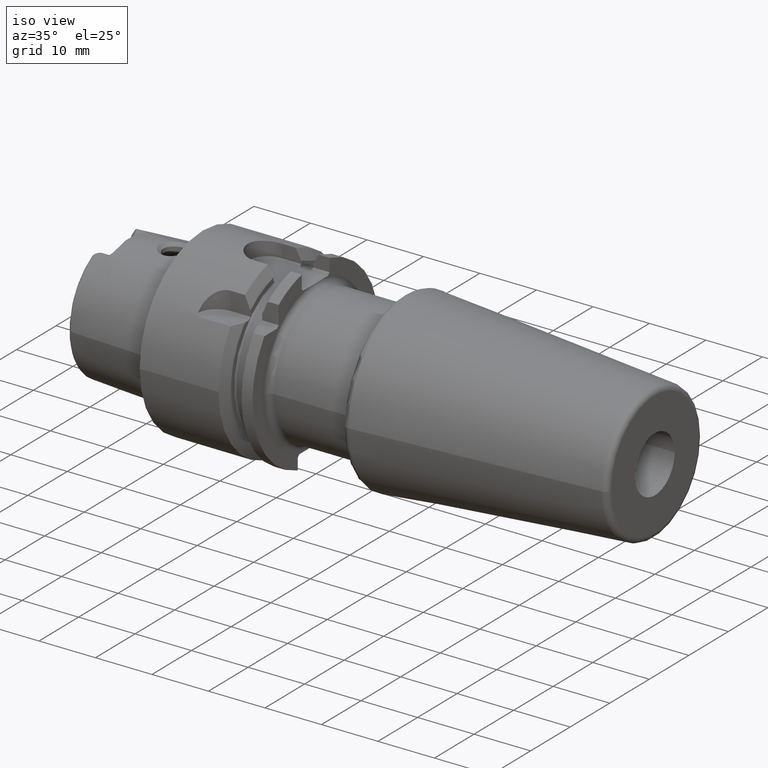
[diagram: clean part render]
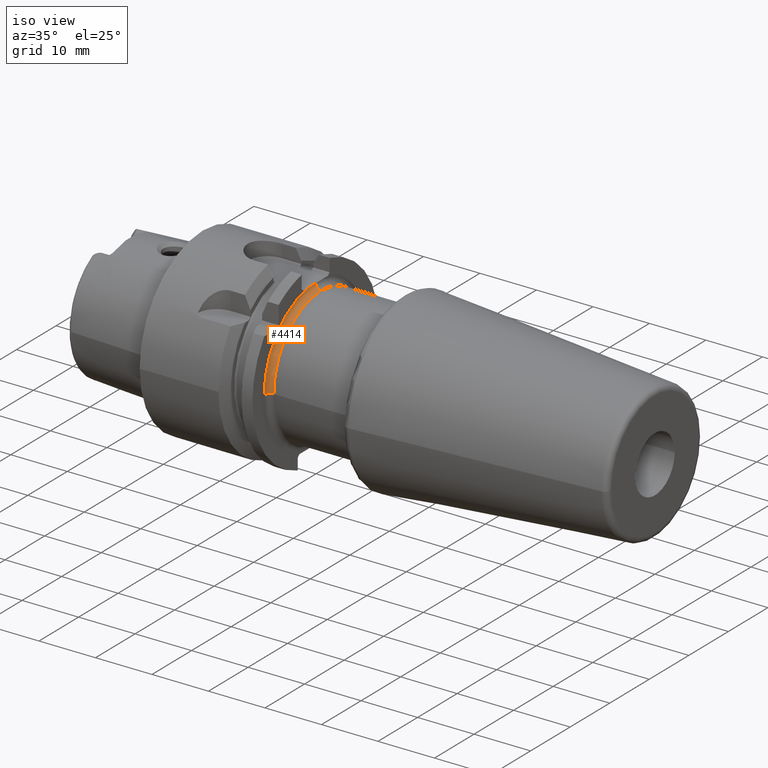
[diagram: same view with one face highlighted and labeled with its STEP entity id]
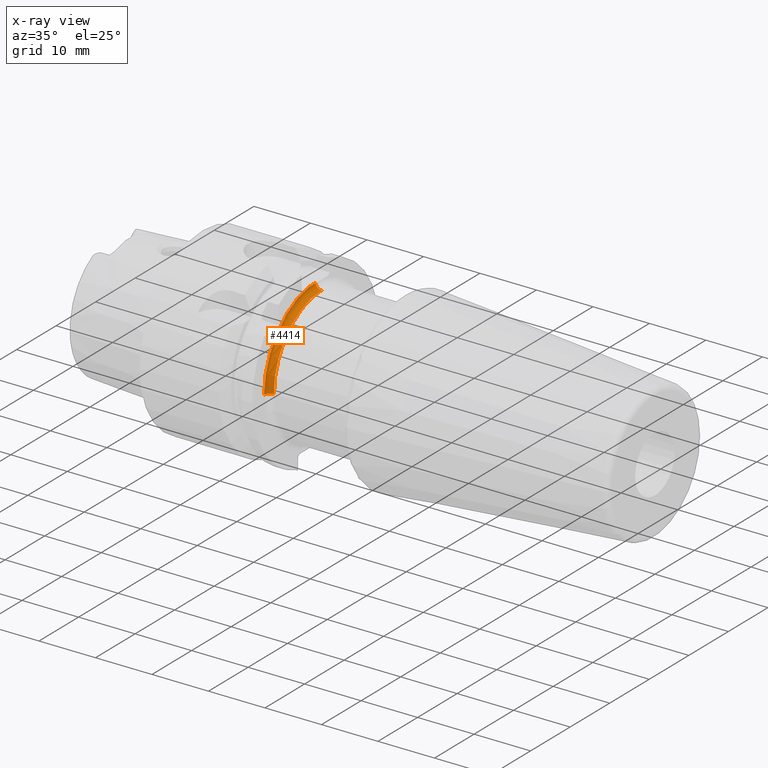
[diagram: x-ray of the same camera — body ghosted, the highlighted face saturated]
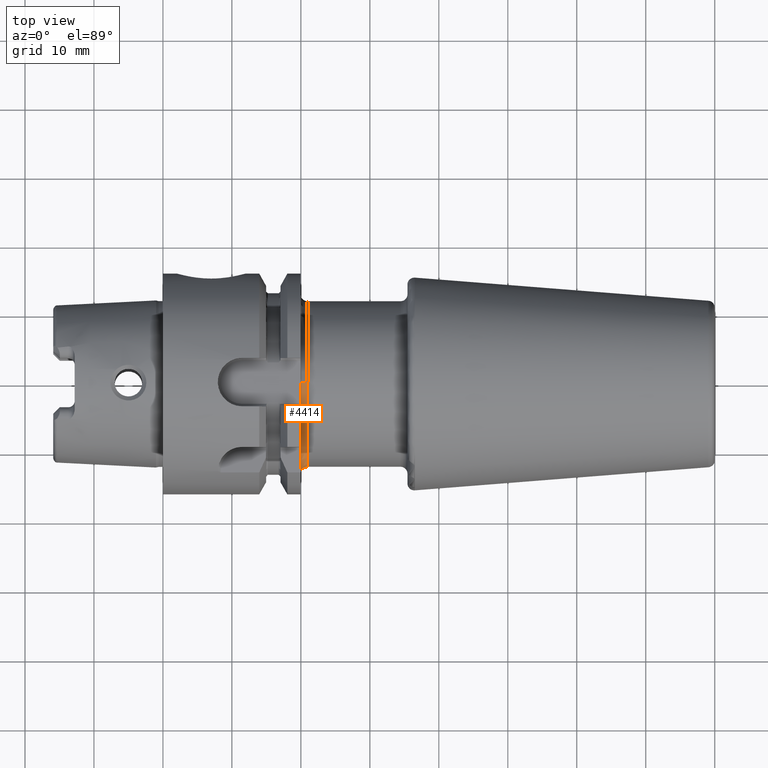
[diagram: same view with one face highlighted and labeled with its STEP entity id]
A machine part, iso view. The second image highlights one B-rep face of the part: STEP entity #4414.
The next image is the same camera in x-ray: the body ghosted, the highlighted face saturated — about 0% of this face is hidden behind the body in this view.
A second angle (top view) of the same face is appended — the face is thin or edge-on in the first view.
In plain terms, the highlighted toroidal blend (fillet) surface has major radius 13 mm and minor (blend) radius 1 mm.
Its self-contained STEP definition (entity closure, byte-faithful):
#1188=CARTESIAN_POINT('',(1.995E1,0.E0,0.E0));
#1189=DIRECTION('',(1.E0,0.E0,0.E0));
#1190=DIRECTION('',(0.E0,-1.237757676974E-1,9.923102132554E-1));
#1191=AXIS2_PLACEMENT_3D('',#1188,#1189,#1190);
#1205=CARTESIAN_POINT('',(2.095E1,-1.3E1,2.567390744446E-14));
#1206=DIRECTION('',(0.E0,0.E0,-1.E0));
#1207=DIRECTION('',(-1.E0,2.131628207280E-14,0.E0));
#1208=AXIS2_PLACEMENT_3D('',#1205,#1206,#1207);
#1227=CARTESIAN_POINT('',(2.095E1,-1.674483274170E-5,1.299999999999E1));
#1228=DIRECTION('',(0.E0,-9.999999999992E-1,-1.288064057054E-6));
#1229=DIRECTION('',(-9.949874371077E-1,1.288064056916E-7,-9.999999998922E-2));
#1230=AXIS2_PLACEMENT_3D('',#1227,#1228,#1229);
#1232=CARTESIAN_POINT('',(1.995501256289E1,-1.661602634047E-5,1.29E1));
#1233=CARTESIAN_POINT('',(1.995501253969E1,-1.792294337541E-1,1.29E1));
#1234=CARTESIAN_POINT('',(1.995421991724E1,-5.374049310996E-1,
1.289999899374E1));
#1235=CARTESIAN_POINT('',(1.995141729180E1,-1.075518852812E0,1.290000352192E1));
#1236=CARTESIAN_POINT('',(1.995E1,-1.431627489715E0,1.289999245302E1));
#1237=CARTESIAN_POINT('',(1.995E1,-1.609319250636E0,1.289999245302E1));
#1239=CARTESIAN_POINT('',(2.095E1,0.E0,0.E0));
#1240=DIRECTION('',(1.E0,0.E0,0.E0));
#1241=DIRECTION('',(0.E0,-8.955364410646E-7,9.999999999996E-1));
#1242=AXIS2_PLACEMENT_3D('',#1239,#1240,#1241);
#3186=CARTESIAN_POINT('',(1.995501256289E1,-1.661602633601E-5,1.29E1));
#3187=CARTESIAN_POINT('',(2.095E1,-1.545676868465E-5,1.199999999999E1));
#3188=VERTEX_POINT('',#3186);
#3189=VERTEX_POINT('',#3187);
#3198=CARTESIAN_POINT('',(1.995E1,-1.3E1,0.E0));
#3199=VERTEX_POINT('',#3198);
#3200=CARTESIAN_POINT('',(2.095E1,-1.2E1,0.E0));
#3201=VERTEX_POINT('',#3200);
#3202=CARTESIAN_POINT('',(1.995E1,-1.609084980067E0,1.290003277232E1));
#3203=VERTEX_POINT('',#3202);
#4400=CARTESIAN_POINT('',(2.095E1,0.E0,0.E0));
#4401=DIRECTION('',(1.E0,0.E0,0.E0));
#4402=DIRECTION('',(0.E0,1.485959642860E-3,-9.999988959614E-1));
#4403=AXIS2_PLACEMENT_3D('',#4400,#4401,#4402);
#4404=TOROIDAL_SURFACE('',#4403,1.3E1,1.E0);
#4405=ORIENTED_EDGE('',*,*,#4392,.T.);
#4407=ORIENTED_EDGE('',*,*,#4406,.T.);
#4408=ORIENTED_EDGE('',*,*,#4386,.F.);
#4409=ORIENTED_EDGE('',*,*,#4372,.F.);
#4411=ORIENTED_EDGE('',*,*,#4410,.F.);
#4412=EDGE_LOOP('',(#4405,#4407,#4408,#4409,#4411));
#4413=FACE_OUTER_BOUND('',#4412,.F.);
#4414=ADVANCED_FACE('',(#4413),#4404,.F.);
#1192=CIRCLE('',#1191,1.3E1);
#1209=CIRCLE('',#1208,1.E0);
#1231=CIRCLE('',#1230,1.E0);
#1238=B_SPLINE_CURVE_WITH_KNOTS('',3,(#1232,#1233,#1234,#1235,#1236,#1237),
.UNSPECIFIED.,.F.,.F.,(4,1,1,4),(0.E0,3.333333333333E-1,6.666666666667E-1,1.E0),
.UNSPECIFIED.);
#1243=CIRCLE('',#1242,1.2E1);
#4372=EDGE_CURVE('',#3203,#3199,#1192,.T.);
#4386=EDGE_CURVE('',#3199,#3201,#1209,.T.);
#4392=EDGE_CURVE('',#3188,#3189,#1231,.T.);
#4406=EDGE_CURVE('',#3189,#3201,#1243,.T.);
#4410=EDGE_CURVE('',#3188,#3203,#1238,.T.);